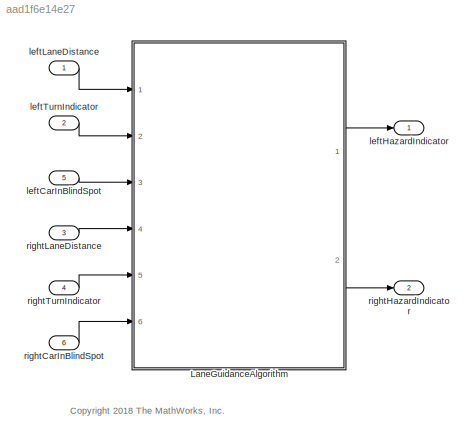
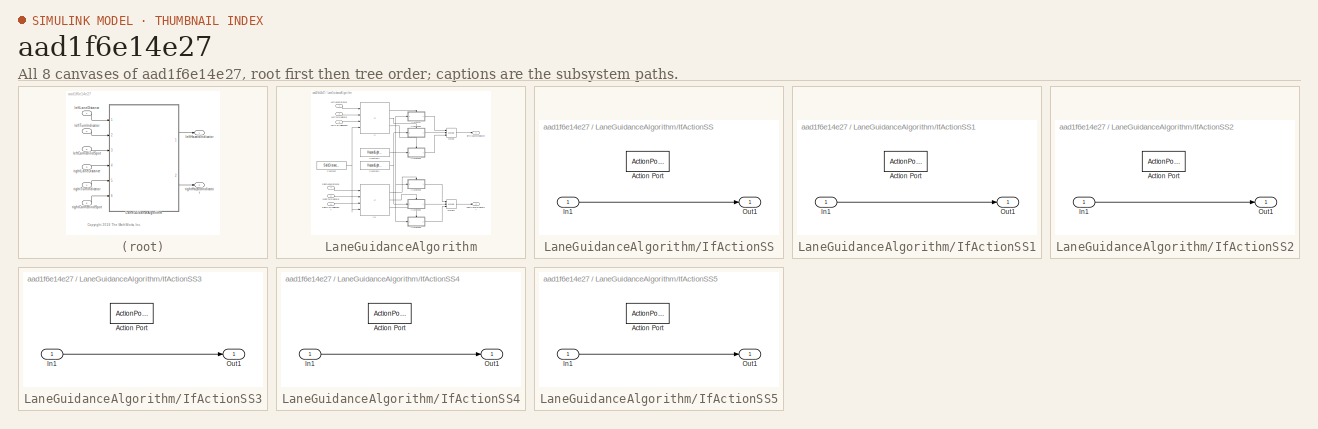
[diagram: thumbnail index - all 8 canvases of the model, root first then tree order]
MODEL slx_aad1f6e14e27
KIND model
CONFIG AbsTol = auto
CONFIG EnableMultiTasking = off
CONFIG FixedStep = 1/10
CONFIG MaxStep = auto
CONFIG MinStep = auto
CONFIG RelTol = 1e-3
CONFIG SampleTimeConstraint = Unconstrained
CONFIG Solver = FixedStepAuto
CONFIG SolverName = FixedStepAuto
CONFIG StartTime = 0.0
CONFIG StopTime = 10.0
WORKSPACE source: mxarray member
WORKSPACE HazardLightsOFF: Simulink.Parameter (value not decoded)
WORKSPACE HazardLightsON: Simulink.Parameter (value not decoded)
WORKSPACE SafeDistanceThreshold: Simulink.Parameter (value not decoded)
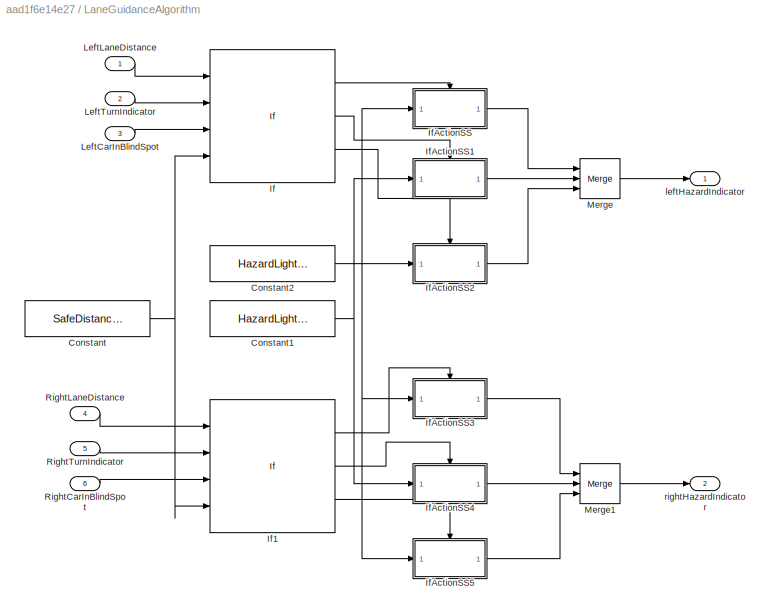
BLOCK [SubSystem] LaneGuidanceAlgorithm
  Ports = [6, 2]
  RequestExecContextInheritance = off
BLOCK [Constant] LaneGuidanceAlgorithm/Constant
  Value = SafeDistanceThreshold
BLOCK [Constant] LaneGuidanceAlgorithm/Constant1
  Value = HazardLightsOFF
BLOCK [Constant] LaneGuidanceAlgorithm/Constant2
  Value = HazardLightsON
BLOCK [If] LaneGuidanceAlgorithm/If
  ElseIfExpressions = (u2 == 0) & (u1 < u4)
  IfExpression = u3 > 0
  NumInputs = 4
  Ports = [4, 3]
BLOCK [If] LaneGuidanceAlgorithm/If1
  ElseIfExpressions = (u2 == 0) & (u1 < u4)
  IfExpression = u3 > 0
  NumInputs = 4
  Ports = [4, 3]
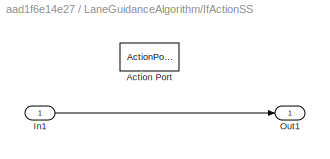
BLOCK [SubSystem] LaneGuidanceAlgorithm/IfActionSS
  Ports = [1, 1, 0, 0, 0, 0, 0, 1]
  RequestExecContextInheritance = off
  TreatAsAtomicUnit = on
BLOCK [ActionPort] LaneGuidanceAlgorithm/IfActionSS/Action Port
  ActionPortLabel = if(u3 > 0)
BLOCK [Inport] LaneGuidanceAlgorithm/IfActionSS/In1
BLOCK [Outport] LaneGuidanceAlgorithm/IfActionSS/Out1
  VectorParamsAs1DForOutWhenUnconnected = off
BLOCK [SubSystem] LaneGuidanceAlgorithm/IfActionSS1
  Ports = [1, 1, 0, 0, 0, 0, 0, 1]
  RequestExecContextInheritance = off
  TreatAsAtomicUnit = on
BLOCK [ActionPort] LaneGuidanceAlgorithm/IfActionSS1/Action Port
  ActionPortLabel = elseif((u2 == 0) & (u1 < u4))
BLOCK [Inport] LaneGuidanceAlgorithm/IfActionSS1/In1
BLOCK [Outport] LaneGuidanceAlgorithm/IfActionSS1/Out1
  VectorParamsAs1DForOutWhenUnconnected = off
BLOCK [SubSystem] LaneGuidanceAlgorithm/IfActionSS2
  Ports = [1, 1, 0, 0, 0, 0, 0, 1]
  RequestExecContextInheritance = off
  TreatAsAtomicUnit = on
BLOCK [ActionPort] LaneGuidanceAlgorithm/IfActionSS2/Action Port
  ActionPortLabel = else
BLOCK [Inport] LaneGuidanceAlgorithm/IfActionSS2/In1
BLOCK [Outport] LaneGuidanceAlgorithm/IfActionSS2/Out1
  VectorParamsAs1DForOutWhenUnconnected = off
BLOCK [SubSystem] LaneGuidanceAlgorithm/IfActionSS3
  Ports = [1, 1, 0, 0, 0, 0, 0, 1]
  RequestExecContextInheritance = off
  TreatAsAtomicUnit = on
BLOCK [ActionPort] LaneGuidanceAlgorithm/IfActionSS3/Action Port
  ActionPortLabel = if(u3 > 0)
BLOCK [Inport] LaneGuidanceAlgorithm/IfActionSS3/In1
BLOCK [Outport] LaneGuidanceAlgorithm/IfActionSS3/Out1
  VectorParamsAs1DForOutWhenUnconnected = off
BLOCK [SubSystem] LaneGuidanceAlgorithm/IfActionSS4
  Ports = [1, 1, 0, 0, 0, 0, 0, 1]
  RequestExecContextInheritance = off
  TreatAsAtomicUnit = on
BLOCK [ActionPort] LaneGuidanceAlgorithm/IfActionSS4/Action Port
  ActionPortLabel = elseif((u2 == 0) & (u1 < u4))
BLOCK [Inport] LaneGuidanceAlgorithm/IfActionSS4/In1
BLOCK [Outport] LaneGuidanceAlgorithm/IfActionSS4/Out1
  VectorParamsAs1DForOutWhenUnconnected = off
BLOCK [SubSystem] LaneGuidanceAlgorithm/IfActionSS5
  Ports = [1, 1, 0, 0, 0, 0, 0, 1]
  RequestExecContextInheritance = off
  TreatAsAtomicUnit = on
BLOCK [ActionPort] LaneGuidanceAlgorithm/IfActionSS5/Action Port
  ActionPortLabel = else
BLOCK [Inport] LaneGuidanceAlgorithm/IfActionSS5/In1
BLOCK [Outport] LaneGuidanceAlgorithm/IfActionSS5/Out1
  VectorParamsAs1DForOutWhenUnconnected = off
BLOCK [Inport] LaneGuidanceAlgorithm/LeftCarInBlindSpot
  Port = 3
BLOCK [Inport] LaneGuidanceAlgorithm/LeftLaneDistance
BLOCK [Inport] LaneGuidanceAlgorithm/LeftTurnIndicator
  Port = 2
BLOCK [Merge] LaneGuidanceAlgorithm/Merge
  Inputs = 3
  Ports = [3, 1]
BLOCK [Merge] LaneGuidanceAlgorithm/Merge1
  Inputs = 3
  Ports = [3, 1]
BLOCK [Inport] LaneGuidanceAlgorithm/RightCarInBlindSpot
  Port = 6
BLOCK [Inport] LaneGuidanceAlgorithm/RightLaneDistance
  Port = 4
BLOCK [Inport] LaneGuidanceAlgorithm/RightTurnIndicator
  Port = 5
BLOCK [Outport] LaneGuidanceAlgorithm/leftHazardIndicator
  VectorParamsAs1DForOutWhenUnconnected = off
BLOCK [Outport] LaneGuidanceAlgorithm/rightHazardIndicator
  Port = 2
  VectorParamsAs1DForOutWhenUnconnected = off
BLOCK [Inport] leftCarInBlindSpot
  OutDataTypeStr = double
  Port = 5
  PortDimensions = 1
  VarSizeSig = No
BLOCK [Outport] leftHazardIndicator
  OutDataTypeStr = double
  PortDimensions = 1
  SignalType = real
  VarSizeSig = No
  VectorParamsAs1DForOutWhenUnconnected = off
BLOCK [Inport] leftLaneDistance
  OutDataTypeStr = double
  PortDimensions = 1
  VarSizeSig = No
BLOCK [Inport] leftTurnIndicator
  OutDataTypeStr = double
  Port = 2
  PortDimensions = 1
  VarSizeSig = No
BLOCK [Inport] rightCarInBlindSpot
  OutDataTypeStr = double
  Port = 6
  PortDimensions = 1
  VarSizeSig = No
BLOCK [Outport] rightHazardIndicator
  OutDataTypeStr = double
  Port = 2
  PortDimensions = 1
  SignalType = real
  VarSizeSig = No
  VectorParamsAs1DForOutWhenUnconnected = off
BLOCK [Inport] rightLaneDistance
  OutDataTypeStr = double
  Port = 3
  PortDimensions = 1
  VarSizeSig = No
BLOCK [Inport] rightTurnIndicator
  OutDataTypeStr = double
  Port = 4
  PortDimensions = 1
  VarSizeSig = No
ANNOTATION (root): <copyright redacted>
NET LaneGuidanceAlgorithm/Constant1:1 -> LaneGuidanceAlgorithm/IfActionSS1:1, LaneGuidanceAlgorithm/IfActionSS4:1
NET LaneGuidanceAlgorithm/Constant2:1 -> LaneGuidanceAlgorithm/IfActionSS2:1, LaneGuidanceAlgorithm/IfActionSS3:1, LaneGuidanceAlgorithm/IfActionSS5:1, LaneGuidanceAlgorithm/IfActionSS:1
NET LaneGuidanceAlgorithm/Constant:1 -> LaneGuidanceAlgorithm/If1:4, LaneGuidanceAlgorithm/If:4
LINE LaneGuidanceAlgorithm/If1:1 -> LaneGuidanceAlgorithm/IfActionSS3:ifaction
LINE LaneGuidanceAlgorithm/If1:2 -> LaneGuidanceAlgorithm/IfActionSS4:ifaction
LINE LaneGuidanceAlgorithm/If1:3 -> LaneGuidanceAlgorithm/IfActionSS5:ifaction
LINE LaneGuidanceAlgorithm/If:1 -> LaneGuidanceAlgorithm/IfActionSS:ifaction
LINE LaneGuidanceAlgorithm/If:2 -> LaneGuidanceAlgorithm/IfActionSS1:ifaction
LINE LaneGuidanceAlgorithm/If:3 -> LaneGuidanceAlgorithm/IfActionSS2:ifaction
LINE LaneGuidanceAlgorithm/IfActionSS/In1:1 -> LaneGuidanceAlgorithm/IfActionSS/Out1:1
LINE LaneGuidanceAlgorithm/IfActionSS1/In1:1 -> LaneGuidanceAlgorithm/IfActionSS1/Out1:1
LINE LaneGuidanceAlgorithm/IfActionSS1:1 -> LaneGuidanceAlgorithm/Merge:2
LINE LaneGuidanceAlgorithm/IfActionSS2/In1:1 -> LaneGuidanceAlgorithm/IfActionSS2/Out1:1
LINE LaneGuidanceAlgorithm/IfActionSS2:1 -> LaneGuidanceAlgorithm/Merge:3
LINE LaneGuidanceAlgorithm/IfActionSS3/In1:1 -> LaneGuidanceAlgorithm/IfActionSS3/Out1:1
LINE LaneGuidanceAlgorithm/IfActionSS3:1 -> LaneGuidanceAlgorithm/Merge1:1
LINE LaneGuidanceAlgorithm/IfActionSS4/In1:1 -> LaneGuidanceAlgorithm/IfActionSS4/Out1:1
LINE LaneGuidanceAlgorithm/IfActionSS4:1 -> LaneGuidanceAlgorithm/Merge1:2
LINE LaneGuidanceAlgorithm/IfActionSS5/In1:1 -> LaneGuidanceAlgorithm/IfActionSS5/Out1:1
LINE LaneGuidanceAlgorithm/IfActionSS5:1 -> LaneGuidanceAlgorithm/Merge1:3
LINE LaneGuidanceAlgorithm/IfActionSS:1 -> LaneGuidanceAlgorithm/Merge:1
LINE LaneGuidanceAlgorithm/LeftCarInBlindSpot:1 -> LaneGuidanceAlgorithm/If:3
LINE LaneGuidanceAlgorithm/LeftLaneDistance:1 -> LaneGuidanceAlgorithm/If:1
LINE LaneGuidanceAlgorithm/LeftTurnIndicator:1 -> LaneGuidanceAlgorithm/If:2
LINE LaneGuidanceAlgorithm/Merge1:1 -> LaneGuidanceAlgorithm/rightHazardIndicator:1
LINE LaneGuidanceAlgorithm/Merge:1 -> LaneGuidanceAlgorithm/leftHazardIndicator:1
LINE LaneGuidanceAlgorithm/RightCarInBlindSpot:1 -> LaneGuidanceAlgorithm/If1:3
LINE LaneGuidanceAlgorithm/RightLaneDistance:1 -> LaneGuidanceAlgorithm/If1:1
LINE LaneGuidanceAlgorithm/RightTurnIndicator:1 -> LaneGuidanceAlgorithm/If1:2
LINE LaneGuidanceAlgorithm:1 -> leftHazardIndicator:1
LINE LaneGuidanceAlgorithm:2 -> rightHazardIndicator:1
LINE leftCarInBlindSpot:1 -> LaneGuidanceAlgorithm:3
LINE leftLaneDistance:1 -> LaneGuidanceAlgorithm:1
LINE leftTurnIndicator:1 -> LaneGuidanceAlgorithm:2
LINE rightCarInBlindSpot:1 -> LaneGuidanceAlgorithm:6
LINE rightLaneDistance:1 -> LaneGuidanceAlgorithm:4
LINE rightTurnIndicator:1 -> LaneGuidanceAlgorithm:5
note: NET lines group one-source signal fan-out (src -> all destinations, sorted); 1:1 wires keep LINE
